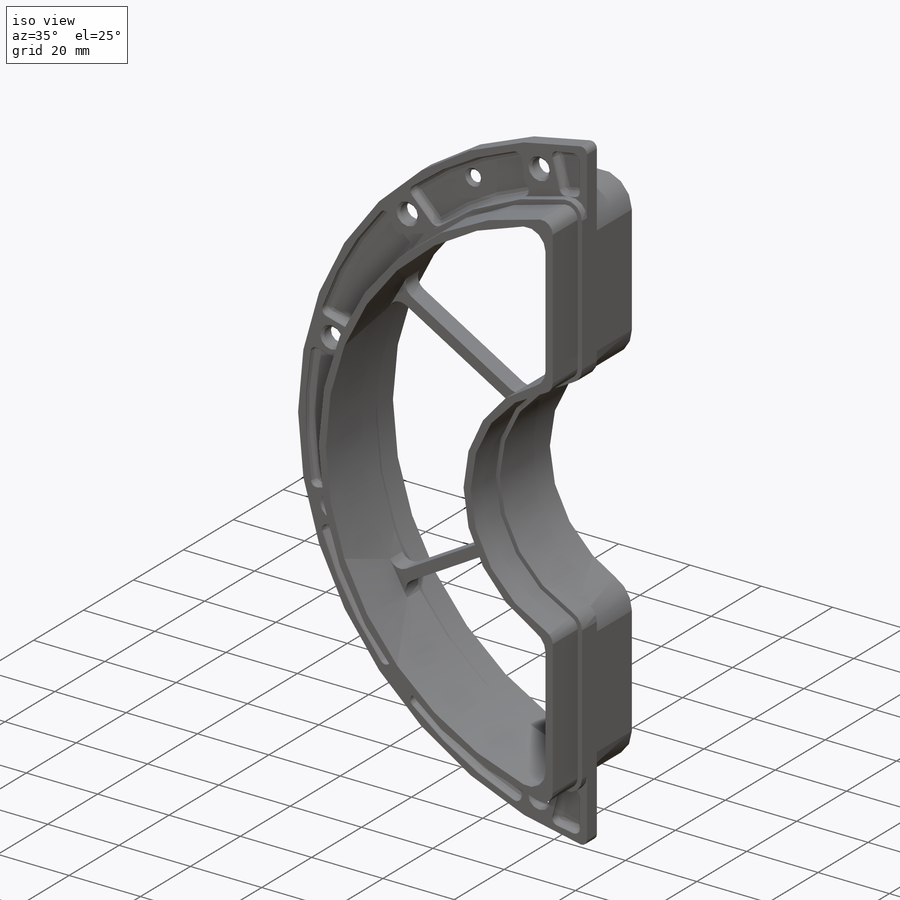
[diagram: iso view]
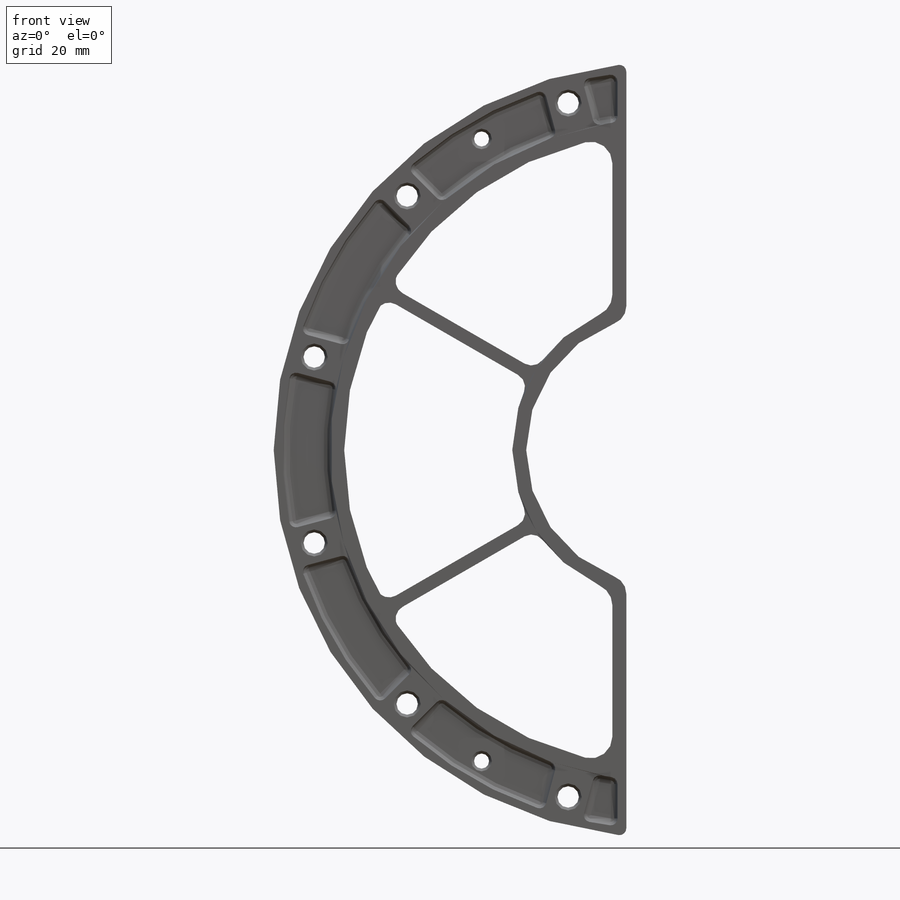
[diagram: front view]
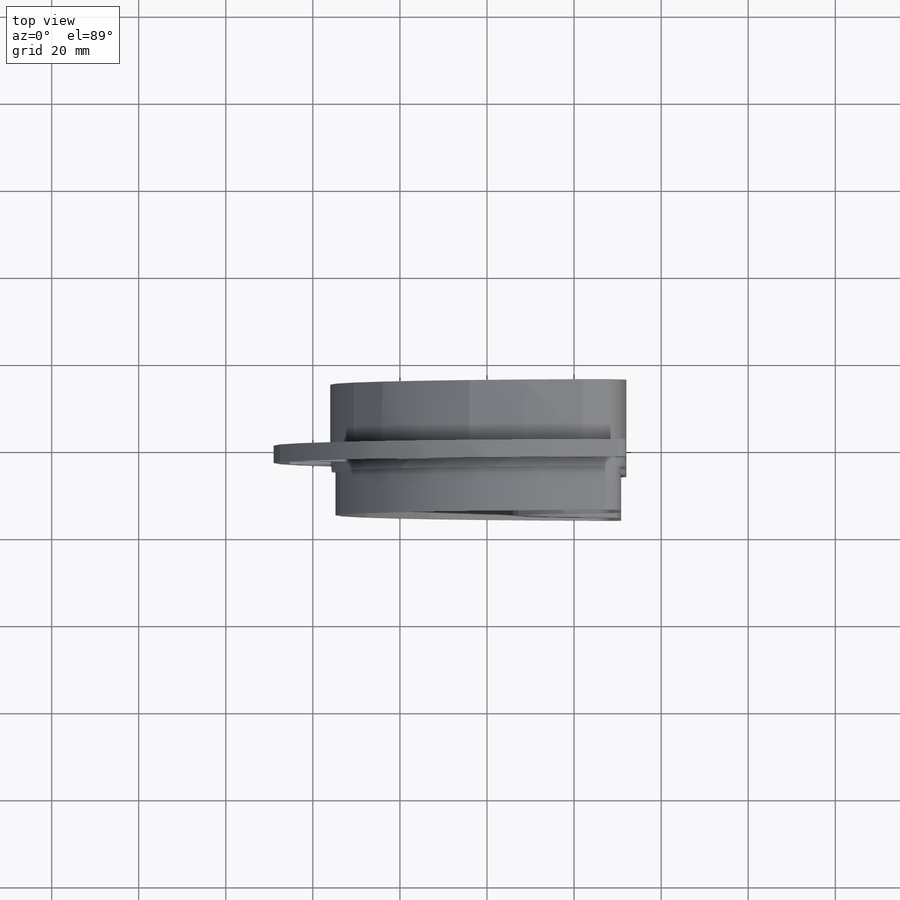
[diagram: top view]
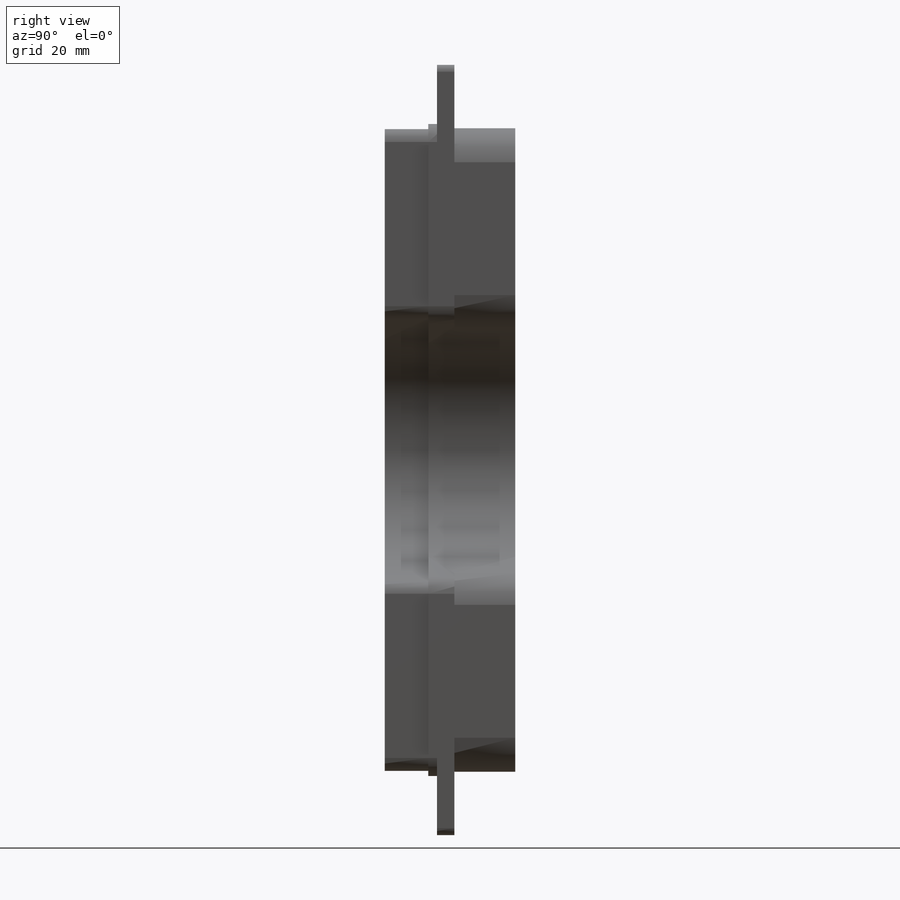
[diagram: right view]
SOLIDWORKS PART (.sldprt)
format: sldprt  version: not decoded by parser v0  size: 864,256 bytes
history: native  units: mm
features: sketch x15, fillet x7, extrude x3, cut_extrude x2, hole x2, mirror x2, material x1, pattern_circular x1, boolean_combine x1 (+11 scaffold rows collapsed)
feature tree (45):
  scaffold x11  (default folders/planes/origin — collapsed)
  material  "6061 Alloy"
  sketch  "Sketch1"  dims[c1.D1=76.0mm c1.D2=31.0mm c1.D3=8.0mm c2.D1=16.0mm c2.D5=3.2mm c2.D6=1.0mm c2.D7=5.0mm]
  fillet  "Fillet1"  Radius=5mm
  fillet  "Fillet2"  Radius=4.2mm
  sketch  "Sketch2"  dims[D1=10.0mm D5=1.2mm D6=1.0mm D7=5.0mm]
  sketch  "Sketch3"  dims[D3=178.0mm D1=192.0mm D2=138.2875mm]
  extrude  "Boss-Extrude1"  Depth=4mm
  sketch  "Sketch9"  dims[D1=2.0mm D2=2.0mm D3=2.0mm]
  cut_extrude  "Cut-Extrude2"  Depth=2mm
  sketch  "Sketch10"  dims[c1.D2=8.3312mm c1.D1=81.5mm c2.D2=12.5mm c2.D3=9.0mm c2.D4=~71.994057mm c3.D4=15.0deg]
  extrude  "Boss-Extrude2"  [1 undecoded]
  pattern_circular  "CirPattern1"  Count=6 Angle=150deg
  sketch  "Sketch11"  dims[c1.D2=30.0deg c1.D3=~81.375101mm c2.D3=15.0deg c2.D4=82.5mm c2.D1=6.0]
  hole  "#8 Clearance Hole1"  Diameter=4.9149mm Depth=4mm
  sketch  "3DSketch1"
  sketch  "Sketch12"  dims[hole-wizard template sketch: 47 standard entries collapsed; hole parameters kept: c15.Thru Hole Depth=4.0mm c15.Near C'Sink Dia.=6.1849mm c15.D4=~3.666174mm c15.Near C'Sink Angle=90.0deg c15.Far C'Sink Dia.=6.1849mm c15.D6=~9.919017mm c15.Far C'Sink Angle=90.0deg]
  fillet  "Fillet3"  Radius=1.5875mm
  fillet  "Fillet4"  Radius=1.5875mm
  sketch  "Sketch8"
  sketch  "Sketch17"  dims[D1=14.0mm D5=3.2mm D6=1.0mm D7=5.0mm]
  fillet  "Fillet5"  Radius=5mm
  fillet  "Fillet6"  Radius=8mm
  boolean_combine  "Combine1"
  sketch  "Sketch7"  dims[D1=1.0mm]
  cut_extrude  "Cut-Extrude1"  Depth=10mm
  sketch  "Sketch13"  dims[c1.D1=~70.903558mm c2.D1=30.0deg c2.D2=82.5mm]
  hole  "#29 (0.136) Diameter Hole1"  Diameter=3.4544mm Depth=2mm
  sketch  "Sketch15"
  sketch  "Sketch14"  dims[hole-wizard template sketch: 54 standard entries collapsed; hole parameters above]
  mirror  "Mirror1"
  sketch  "Sketch18"  dims[c1.D1=~93.773863mm c2.D1=30.0deg c2.D2=3.0mm]
  extrude  "Boss-Extrude3"  Depth=5mm
  mirror  "Mirror2"
  fillet  "Fillet7"  Radius=3.175mm
decode coverage: 26 of 33 modeling features carry decoded parameters
note: ~ marks probable driven/reference dimensions
note: 1 parameter value undecoded
note: suppression state not decoded; provenance and decode notes live in map.json
